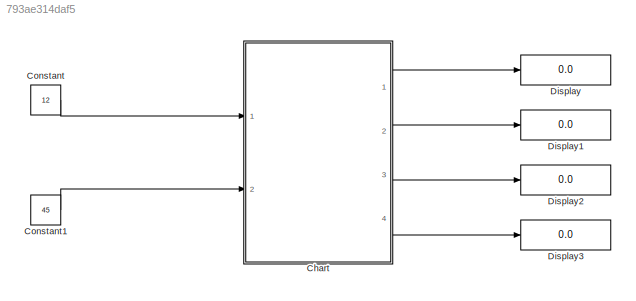
MODEL slx_793ae314daf5
KIND model
CONFIG AbsTol = auto
CONFIG EnableMultiTasking = on
CONFIG FixedStep = auto
CONFIG MaxStep = auto
CONFIG MinStep = auto
CONFIG RelTol = 1e-3
CONFIG SampleTimeConstraint = Unconstrained
CONFIG Solver = VariableStepAuto
CONFIG SolverName = VariableStepAuto
CONFIG StartTime = 0.0
CONFIG StopTime = 10.0
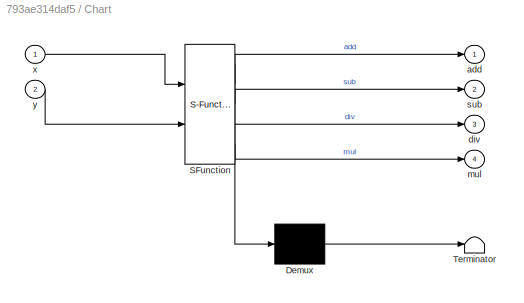
BLOCK [SubSystem] Chart
  ErrorFcn = Stateflow.Translate.translate
  PermitHierarchicalResolution = ExplicitOnly
  Ports = [2, 4]
  RequestExecContextInheritance = off
  SFBlockType = Chart
  TreatAsAtomicUnit = on
BLOCK [Demux] Chart/ Demux 
  Outputs = 1
  Ports = [1, 1]
BLOCK [S-Function] Chart/ SFunction 
  EnableBusSupport = off
  FunctionName = sf_sfun
  PortCounts = [2 5]
  Ports = [2, 5]
  SFcnIsStateOwnerBlock = off
  SFunctionDeploymentMode = off
  Tag = Stateflow S-Function Calculator 3
BLOCK [Terminator] Chart/ Terminator 
BLOCK [Outport] Chart/add
  IconDisplay = Port number
BLOCK [Outport] Chart/div
  IconDisplay = Port number
  Port = 3
BLOCK [Outport] Chart/mul
  IconDisplay = Port number
  Port = 4
BLOCK [Outport] Chart/sub
  IconDisplay = Port number
  Port = 2
BLOCK [Inport] Chart/x
  IconDisplay = Port number
BLOCK [Inport] Chart/y
  IconDisplay = Port number
  Port = 2
BLOCK [Constant] Constant
  Value = 12
BLOCK [Constant] Constant1
  Value = 45
BLOCK [Display] Display
  Decimation = 1
  Ports = [1]
BLOCK [Display] Display1
  Decimation = 1
  Ports = [1]
BLOCK [Display] Display2
  Decimation = 1
  Ports = [1]
BLOCK [Display] Display3
  Decimation = 1
  Ports = [1]
LINE Chart:1 -> Display:1
LINE Chart:2 -> Display1:1
LINE Chart:3 -> Display2:1
LINE Chart:4 -> Display3:1
LINE Constant1:1 -> Chart:2
LINE Constant:1 -> Chart:1
CHART Chart states=1 transitions=1
  STATE_LABEL 'Calculator_\nentry:\nadd = x+y;\nsub = x-y;\ndiv = x/y;\nmul =x*y;'
